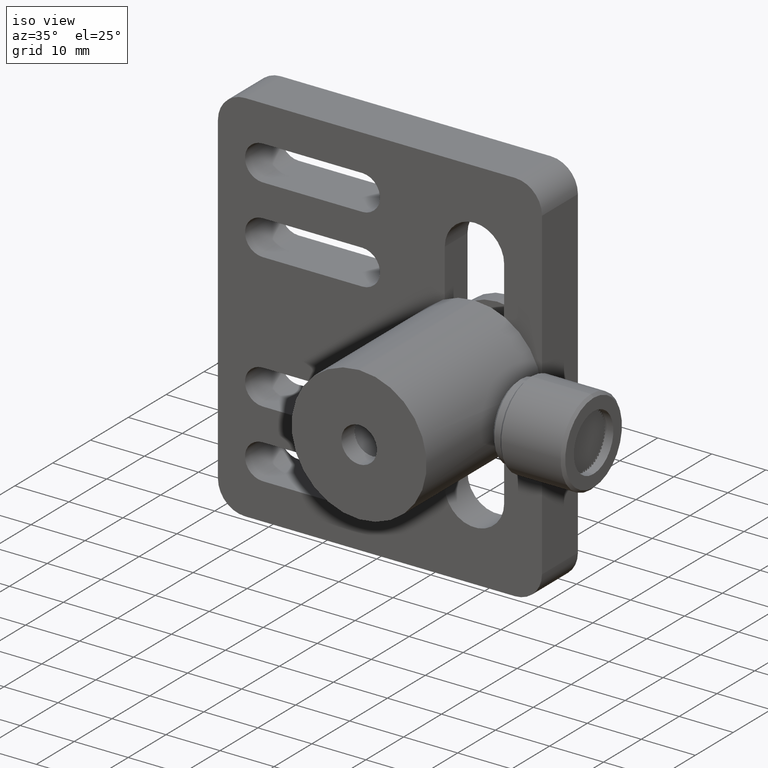
[diagram: clean part render]
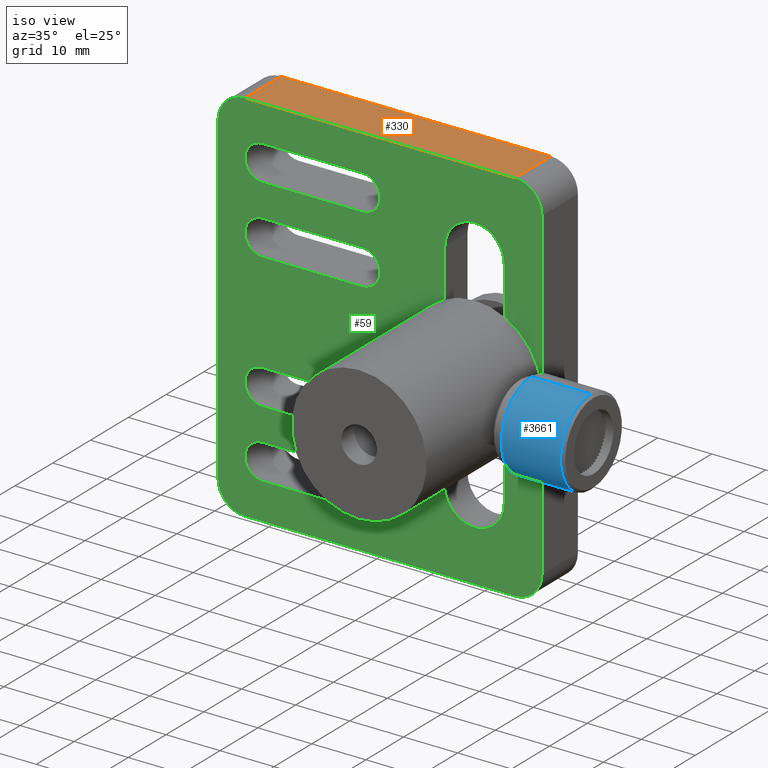
[diagram: same view with three faces highlighted in distinct colors, each labeled with its STEP entity id]
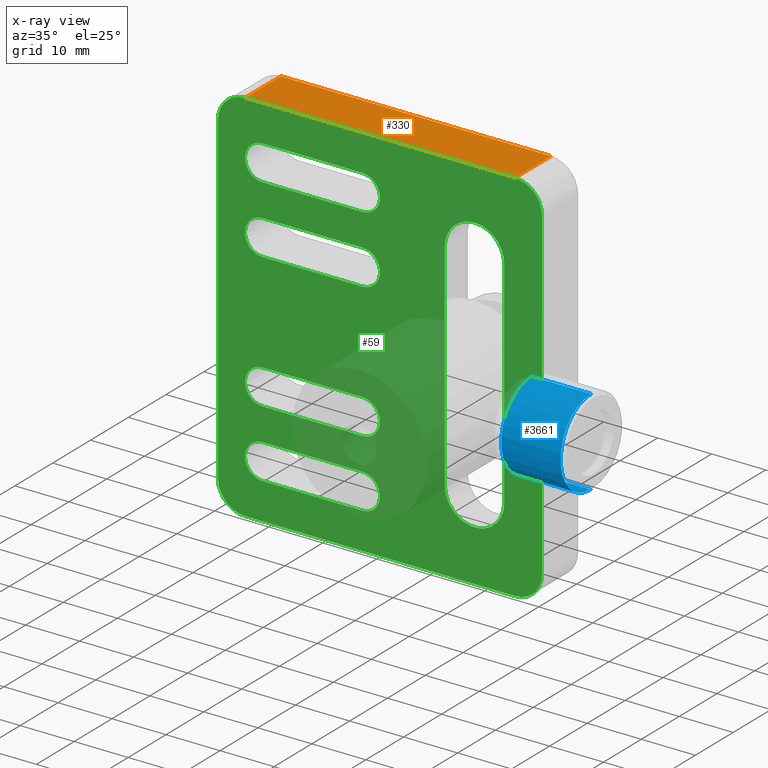
[diagram: x-ray of the same camera — body ghosted, the three highlighted faces saturated]
A machine part, iso view with three faces highlighted in distinct colors.
The next image is the same camera in x-ray (body ghosted, the three faces saturated) — at least one of them is partly hidden behind the body in this view.
Their STEP definitions:

[orange] entity #330 — the highlighted planar face has unit normal (0, -0, 1).
#65 = LINE ( 'NONE', #897, #756 ) ;
#205 = EDGE_CURVE ( 'NONE', #2771, #2123, #1930, .T. ) ;
#330 = ADVANCED_FACE ( 'NONE', ( #1451 ), #1740, .T. ) ;
#370 = VECTOR ( 'NONE', #419, 1000.000000000000000 ) ;
#386 = DIRECTION ( 'NONE',  ( 2.775557561562894300E-016, -0.0000000000000000000, 1.000000000000000000 ) ) ;
#419 = DIRECTION ( 'NONE',  ( 0.0000000000000000000, 1.000000000000000000, 0.0000000000000000000 ) ) ;
#461 = ORIENTED_EDGE ( 'NONE', *, *, #205, .T. ) ;
#577 = EDGE_CURVE ( 'NONE', #3129, #1959, #65, .T. ) ;
#618 = ORIENTED_EDGE ( 'NONE', *, *, #3703, .F. ) ;
#620 = ORIENTED_EDGE ( 'NONE', *, *, #3193, .T. ) ;
#756 = VECTOR ( 'NONE', #3875, 1000.000000000000000 ) ;
#897 = CARTESIAN_POINT ( 'NONE',  ( -69.94529086523761000, -2.361489554950050100, 35.00000000000000000 ) ) ;
#1034 = VECTOR ( 'NONE', #2993, 1000.000000000000000 ) ;
#1064 = CARTESIAN_POINT ( 'NONE',  ( -23.09264305177112000, -11.86148955495005100, 34.99999999999999300 ) ) ;
#1179 = CARTESIAN_POINT ( 'NONE',  ( 26.90735694822882400, -11.86148955495005100, 34.99999999999997900 ) ) ;
#1448 = CARTESIAN_POINT ( 'NONE',  ( -69.94529086523761000, -11.86148955495005100, 35.00000000000000000 ) ) ;
#1451 = FACE_OUTER_BOUND ( 'NONE', #3376, .T. ) ;
#1547 = LINE ( 'NONE', #1064, #370 ) ;
#1721 = CARTESIAN_POINT ( 'NONE',  ( -69.94529086523761000, -11.86148955495005100, 35.00000000000000000 ) ) ;
#1740 = PLANE ( 'NONE',  #3126 ) ;
#1808 = CARTESIAN_POINT ( 'NONE',  ( -23.09264305177112000, -2.361489554950050100, 34.99999999999999300 ) ) ;
#1930 = LINE ( 'NONE', #1721, #1034 ) ;
#1959 = VERTEX_POINT ( 'NONE', #4295 ) ;
#2067 = VECTOR ( 'NONE', #2215, 1000.000000000000000 ) ;
#2113 = DIRECTION ( 'NONE',  ( 1.000000000000000000, 0.0000000000000000000, -2.775557561562894300E-016 ) ) ;
#2123 = VERTEX_POINT ( 'NONE', #2597 ) ;
#2215 = DIRECTION ( 'NONE',  ( 0.0000000000000000000, 1.000000000000000000, 0.0000000000000000000 ) ) ;
#2597 = CARTESIAN_POINT ( 'NONE',  ( 26.90735694822882400, -11.86148955495005100, 34.99999999999997900 ) ) ;
#2771 = VERTEX_POINT ( 'NONE', #3203 ) ;
#2851 = LINE ( 'NONE', #1179, #2067 ) ;
#2993 = DIRECTION ( 'NONE',  ( 1.000000000000000000, 0.0000000000000000000, -2.775557561562894300E-016 ) ) ;
#3126 = AXIS2_PLACEMENT_3D ( 'NONE', #1448, #386, #2113 ) ;
#3128 = ORIENTED_EDGE ( 'NONE', *, *, #577, .F. ) ;
#3129 = VERTEX_POINT ( 'NONE', #1808 ) ;
#3193 = EDGE_CURVE ( 'NONE', #2123, #1959, #2851, .T. ) ;
#3203 = CARTESIAN_POINT ( 'NONE',  ( -23.09264305177112000, -11.86148955495005100, 34.99999999999999300 ) ) ;
#3376 = EDGE_LOOP ( 'NONE', ( #3128, #618, #461, #620 ) ) ;
#3703 = EDGE_CURVE ( 'NONE', #2771, #3129, #1547, .T. ) ;
#3875 = DIRECTION ( 'NONE',  ( 1.000000000000000000, 0.0000000000000000000, -2.775557561562894300E-016 ) ) ;
#4295 = CARTESIAN_POINT ( 'NONE',  ( 26.90735694822882400, -2.361489554950050100, 34.99999999999997900 ) ) ;

[blue] entity #3661 — the highlighted cylindrical surface (partial cylindrical patch) has radius 8 mm, axis along (1, 0, -0).
#220 = ORIENTED_EDGE ( 'NONE', *, *, #4328, .T. ) ;
#358 = CARTESIAN_POINT ( 'NONE',  ( 47.60735694822877700, -21.36148955495005100, 2.249594212587182400E-014 ) ) ;
#439 = VERTEX_POINT ( 'NONE', #815 ) ;
#484 = FACE_OUTER_BOUND ( 'NONE', #3989, .T. ) ;
#725 = DIRECTION ( 'NONE',  ( 0.0000000000000000000, 0.0000000000000000000, -1.000000000000000000 ) ) ;
#772 = LINE ( 'NONE', #1071, #1782 ) ;
#815 = CARTESIAN_POINT ( 'NONE',  ( 36.60735694822878400, -21.36148955495005500, -7.999999999999977800 ) ) ;
#1015 = VERTEX_POINT ( 'NONE', #1985 ) ;
#1071 = CARTESIAN_POINT ( 'NONE',  ( 34.10735694822878400, -21.36148955495003000, -7.999999999999977800 ) ) ;
#1091 = ORIENTED_EDGE ( 'NONE', *, *, #1135, .T. ) ;
#1135 = EDGE_CURVE ( 'NONE', #439, #1199, #772, .T. ) ;
#1199 = VERTEX_POINT ( 'NONE', #3082 ) ;
#1362 = DIRECTION ( 'NONE',  ( 0.0000000000000000000, 0.0000000000000000000, -1.000000000000000000 ) ) ;
#1405 = VERTEX_POINT ( 'NONE', #3898 ) ;
#1408 = CARTESIAN_POINT ( 'NONE',  ( 34.10735694822878400, -21.36148955495003000, 2.267564968752979600E-014 ) ) ;
#1443 = AXIS2_PLACEMENT_3D ( 'NONE', #358, #2723, #1362 ) ;
#1470 = EDGE_CURVE ( 'NONE', #1405, #439, #1989, .T. ) ;
#1596 = LINE ( 'NONE', #1714, #3255 ) ;
#1675 = DIRECTION ( 'NONE',  ( 1.000000000000000000, 3.382788729622947300E-016, -1.331167123392389800E-017 ) ) ;
#1714 = CARTESIAN_POINT ( 'NONE',  ( 34.10735694822878400, -21.36148955495003000, 8.000000000000023100 ) ) ;
#1782 = VECTOR ( 'NONE', #1675, 1000.000000000000000 ) ;
#1950 = DIRECTION ( 'NONE',  ( 1.000000000000000000, 3.382788729622947300E-016, -1.331167123392389800E-017 ) ) ;
#1985 = CARTESIAN_POINT ( 'NONE',  ( 47.60735694822877700, -21.36148955495002600, 8.000000000000023100 ) ) ;
#1989 = CIRCLE ( 'NONE', #2933, 8.000000000000000000 ) ;
#2723 = DIRECTION ( 'NONE',  ( -1.000000000000000000, -3.382788729622947300E-016, 1.331167123392389800E-017 ) ) ;
#2753 = DIRECTION ( 'NONE',  ( 1.000000000000000000, 3.382788729622947300E-016, -1.331167123392389800E-017 ) ) ;
#2762 = AXIS2_PLACEMENT_3D ( 'NONE', #1408, #2753, #725 ) ;
#2933 = AXIS2_PLACEMENT_3D ( 'NONE', #3606, #1950, #3224 ) ;
#3082 = CARTESIAN_POINT ( 'NONE',  ( 47.60735694822877700, -21.36148955495005100, -7.999999999999977800 ) ) ;
#3107 = CIRCLE ( 'NONE', #1443, 8.000000000000000000 ) ;
#3162 = CYLINDRICAL_SURFACE ( 'NONE', #2762, 8.000000000000000000 ) ;
#3224 = DIRECTION ( 'NONE',  ( 0.0000000000000000000, 0.0000000000000000000, 1.000000000000000000 ) ) ;
#3255 = VECTOR ( 'NONE', #4095, 1000.000000000000000 ) ;
#3425 = EDGE_CURVE ( 'NONE', #1405, #1015, #1596, .T. ) ;
#3498 = ORIENTED_EDGE ( 'NONE', *, *, #1470, .T. ) ;
#3606 = CARTESIAN_POINT ( 'NONE',  ( 36.60735694822878400, -21.36148955495005500, 2.264237050944496300E-014 ) ) ;
#3661 = ADVANCED_FACE ( 'NONE', ( #484 ), #3162, .T. ) ;
#3898 = CARTESIAN_POINT ( 'NONE',  ( 36.60735694822878400, -21.36148955495005500, 8.000000000000023100 ) ) ;
#3989 = EDGE_LOOP ( 'NONE', ( #4074, #3498, #1091, #220 ) ) ;
#4074 = ORIENTED_EDGE ( 'NONE', *, *, #3425, .F. ) ;
#4095 = DIRECTION ( 'NONE',  ( 1.000000000000000000, 3.382788729622947300E-016, -1.331167123392389800E-017 ) ) ;
#4328 = EDGE_CURVE ( 'NONE', #1199, #1015, #3107, .T. ) ;

[green] entity #59 — the highlighted planar face has unit normal (0, 1, -0).
#8 = DIRECTION ( 'NONE',  ( 9.830099697201912100E-016, 0.0000000000000000000, -1.000000000000000000 ) ) ;
#30 = CIRCLE ( 'NONE', #2638, 3.250000000000001300 ) ;
#59 = ADVANCED_FACE ( 'NONE', ( #4268, #3381, #3490, #1299, #4164, #2497 ), #1267, .F. ) ;
#67 = CARTESIAN_POINT ( 'NONE',  ( 1.907356948228889000, -11.86148955495005100, 15.74999999999999300 ) ) ;
#76 = AXIS2_PLACEMENT_3D ( 'NONE', #542, #2898, #1575 ) ;
#86 = CARTESIAN_POINT ( 'NONE',  ( 31.90735694822885500, -11.86148955495005100, 1.005224583982862600E-013 ) ) ;
#114 = ORIENTED_EDGE ( 'NONE', *, *, #4178, .F. ) ;
#116 = AXIS2_PLACEMENT_3D ( 'NONE', #2855, #849, #3183 ) ;
#118 = CIRCLE ( 'NONE', #116, 3.249999999999999600 ) ;
#128 = VECTOR ( 'NONE', #3809, 1000.000000000000000 ) ;
#130 = DIRECTION ( 'NONE',  ( 1.000000000000000000, -0.0000000000000000000, 0.0000000000000000000 ) ) ;
#135 = CIRCLE ( 'NONE', #673, 5.499999999999998200 ) ;
#156 = CARTESIAN_POINT ( 'NONE',  ( 31.90735694822882700, -11.86148955495005100, 29.99999999999998600 ) ) ;
#184 = EDGE_CURVE ( 'NONE', #4283, #2771, #229, .T. ) ;
#205 = EDGE_CURVE ( 'NONE', #2771, #2123, #1930, .T. ) ;
#214 = DIRECTION ( 'NONE',  ( 1.000000000000000000, 0.0000000000000000000, -3.750753461571475400E-016 ) ) ;
#217 = VERTEX_POINT ( 'NONE', #4353 ) ;
#229 = CIRCLE ( 'NONE', #2518, 5.000000000000039100 ) ;
#241 = DIRECTION ( 'NONE',  ( -0.0000000000000000000, -0.0000000000000000000, -1.000000000000000000 ) ) ;
#264 = AXIS2_PLACEMENT_3D ( 'NONE', #801, #4181, #469 ) ;
#277 = CARTESIAN_POINT ( 'NONE',  ( -28.09264305177111300, -11.86148955495005100, -30.00000000000000700 ) ) ;
#290 = VERTEX_POINT ( 'NONE', #767 ) ;
#305 = DIRECTION ( 'NONE',  ( 0.0000000000000000000, 0.0000000000000000000, 1.000000000000000000 ) ) ;
#309 = DIRECTION ( 'NONE',  ( 0.0000000000000000000, 1.000000000000000000, -0.0000000000000000000 ) ) ;
#332 = VECTOR ( 'NONE', #8, 1000.000000000000000 ) ;
#396 = EDGE_CURVE ( 'NONE', #1503, #3457, #2026, .T. ) ;
#410 = EDGE_CURVE ( 'NONE', #2359, #3389, #118, .T. ) ;
#423 = DIRECTION ( 'NONE',  ( 0.0000000000000000000, 1.000000000000000000, -0.0000000000000000000 ) ) ;
#445 = ORIENTED_EDGE ( 'NONE', *, *, #744, .F. ) ;
#448 = VERTEX_POINT ( 'NONE', #834 ) ;
#469 = DIRECTION ( 'NONE',  ( 0.0000000000000000000, 0.0000000000000000000, 1.000000000000000000 ) ) ;
#488 = EDGE_LOOP ( 'NONE', ( #2393, #3819, #1167, #1354 ) ) ;
#492 = ORIENTED_EDGE ( 'NONE', *, *, #396, .T. ) ;
#505 = VERTEX_POINT ( 'NONE', #1538 ) ;
#517 = VERTEX_POINT ( 'NONE', #554 ) ;
#535 = VECTOR ( 'NONE', #3063, 1000.000000000000000 ) ;
#542 = CARTESIAN_POINT ( 'NONE',  ( -19.84264305177111600, -11.86148955495005100, -25.00000000000000700 ) ) ;
#548 = ORIENTED_EDGE ( 'NONE', *, *, #1321, .F. ) ;
#554 = CARTESIAN_POINT ( 'NONE',  ( -19.84264305177111600, -11.86148955495005100, -15.75000000000000700 ) ) ;
#573 = CARTESIAN_POINT ( 'NONE',  ( -69.94529086523762400, -11.86148955495005100, 6.289829463663238100E-015 ) ) ;
#581 = ORIENTED_EDGE ( 'NONE', *, *, #1248, .T. ) ;
#599 = EDGE_CURVE ( 'NONE', #2551, #3558, #1444, .T. ) ;
#621 = DIRECTION ( 'NONE',  ( -0.0000000000000000000, 1.000000000000000000, 0.0000000000000000000 ) ) ;
#658 = DIRECTION ( 'NONE',  ( 0.0000000000000000000, 1.000000000000000000, -0.0000000000000000000 ) ) ;
#660 = CARTESIAN_POINT ( 'NONE',  ( -28.09264305177116900, -11.86148955495005100, 29.99999999999997200 ) ) ;
#667 = EDGE_LOOP ( 'NONE', ( #4346, #3523, #3742, #2107 ) ) ;
#673 = AXIS2_PLACEMENT_3D ( 'NONE', #4010, #2040, #305 ) ;
#681 = DIRECTION ( 'NONE',  ( 0.0000000000000000000, 0.0000000000000000000, 1.000000000000000000 ) ) ;
#687 = CARTESIAN_POINT ( 'NONE',  ( -23.09264305177117300, -11.86148955495005100, -35.00000000000000700 ) ) ;
#696 = CARTESIAN_POINT ( 'NONE',  ( 1.907356948228891500, -11.86148955495005100, 21.74999999999999600 ) ) ;
#702 = VERTEX_POINT ( 'NONE', #2090 ) ;
#708 = DIRECTION ( 'NONE',  ( 1.000000000000000000, -0.0000000000000000000, 0.0000000000000000000 ) ) ;
#736 = CARTESIAN_POINT ( 'NONE',  ( -1.342643051771116100, -11.86148955495005100, -15.75000000000000700 ) ) ;
#743 = VECTOR ( 'NONE', #214, 1000.000000000000000 ) ;
#744 = EDGE_CURVE ( 'NONE', #1992, #4070, #4257, .T. ) ;
#767 = CARTESIAN_POINT ( 'NONE',  ( 19.40735694822887700, -11.86148955495005100, 25.49999999999999300 ) ) ;
#776 = CARTESIAN_POINT ( 'NONE',  ( 24.90735694822887700, -11.86148955495005100, 19.99999999999999300 ) ) ;
#785 = VERTEX_POINT ( 'NONE', #3172 ) ;
#793 = LINE ( 'NONE', #696, #4244 ) ;
#801 = CARTESIAN_POINT ( 'NONE',  ( 19.40735694822887700, -11.86148955495005100, 19.99999999999999300 ) ) ;
#820 = CARTESIAN_POINT ( 'NONE',  ( 26.90735694822888400, -11.86148955495005100, -30.00000000000001400 ) ) ;
#834 = CARTESIAN_POINT ( 'NONE',  ( -1.342643051771116100, -11.86148955495005100, -9.250000000000007100 ) ) ;
#849 = DIRECTION ( 'NONE',  ( 0.0000000000000000000, 1.000000000000000000, -0.0000000000000000000 ) ) ;
#892 = VERTEX_POINT ( 'NONE', #3496 ) ;
#899 = ORIENTED_EDGE ( 'NONE', *, *, #2895, .F. ) ;
#906 = CARTESIAN_POINT ( 'NONE',  ( -1.342643051771111900, -11.86148955495005100, 21.74999999999999600 ) ) ;
#964 = LINE ( 'NONE', #4290, #3414 ) ;
#972 = CIRCLE ( 'NONE', #3115, 3.250000000000001300 ) ;
#985 = ORIENTED_EDGE ( 'NONE', *, *, #4312, .T. ) ;
#1005 = DIRECTION ( 'NONE',  ( 0.0000000000000000000, 1.000000000000000000, -0.0000000000000000000 ) ) ;
#1032 = CARTESIAN_POINT ( 'NONE',  ( -19.84264305177110900, -11.86148955495005100, 28.25000000000000000 ) ) ;
#1034 = VECTOR ( 'NONE', #2993, 1000.000000000000000 ) ;
#1047 = EDGE_CURVE ( 'NONE', #4283, #1587, #2348, .T. ) ;
#1086 = DIRECTION ( 'NONE',  ( 1.000000000000000000, 0.0000000000000000000, -3.750753461571475400E-016 ) ) ;
#1104 = EDGE_CURVE ( 'NONE', #217, #290, #135, .T. ) ;
#1115 = CARTESIAN_POINT ( 'NONE',  ( 26.90735694822882400, -11.86148955495005100, 29.99999999999998900 ) ) ;
#1156 = ORIENTED_EDGE ( 'NONE', *, *, #1220, .T. ) ;
#1167 = ORIENTED_EDGE ( 'NONE', *, *, #410, .T. ) ;
#1220 = EDGE_CURVE ( 'NONE', #702, #505, #2450, .T. ) ;
#1248 = EDGE_CURVE ( 'NONE', #3457, #3558, #4122, .T. ) ;
#1253 = AXIS2_PLACEMENT_3D ( 'NONE', #3046, #309, #3679 ) ;
#1267 = PLANE ( 'NONE',  #3573 ) ;
#1278 = DIRECTION ( 'NONE',  ( 0.0000000000000000000, 0.0000000000000000000, 1.000000000000000000 ) ) ;
#1299 = FACE_BOUND ( 'NONE', #667, .T. ) ;
#1302 = DIRECTION ( 'NONE',  ( 0.0000000000000000000, 0.0000000000000000000, -1.000000000000000000 ) ) ;
#1321 = EDGE_CURVE ( 'NONE', #2401, #1992, #3333, .T. ) ;
#1354 = ORIENTED_EDGE ( 'NONE', *, *, #3174, .F. ) ;
#1386 = CIRCLE ( 'NONE', #264, 5.499999999999998200 ) ;
#1400 = CARTESIAN_POINT ( 'NONE',  ( -19.84264305177111300, -11.86148955495005100, 9.249999999999998200 ) ) ;
#1429 = VECTOR ( 'NONE', #130, 1000.000000000000000 ) ;
#1444 = CIRCLE ( 'NONE', #2163, 3.249999999999999600 ) ;
#1446 = DIRECTION ( 'NONE',  ( 1.000000000000000000, 0.0000000000000000000, -3.750753461571475400E-016 ) ) ;
#1471 = EDGE_CURVE ( 'NONE', #4239, #785, #3696, .T. ) ;
#1476 = CARTESIAN_POINT ( 'NONE',  ( -1.342643051771110100, -11.86148955495005100, 28.24999999999999300 ) ) ;
#1488 = LINE ( 'NONE', #3904, #2637 ) ;
#1503 = VERTEX_POINT ( 'NONE', #4332 ) ;
#1518 = VECTOR ( 'NONE', #1086, 1000.000000000000000 ) ;
#1538 = CARTESIAN_POINT ( 'NONE',  ( -1.342643051771112300, -11.86148955495005100, 15.74999999999999300 ) ) ;
#1551 = DIRECTION ( 'NONE',  ( 8.673617379884036500E-016, 0.0000000000000000000, 1.000000000000000000 ) ) ;
#1567 = CARTESIAN_POINT ( 'NONE',  ( -1.342643051771113200, -11.86148955495005100, 12.49999999999999300 ) ) ;
#1569 = CARTESIAN_POINT ( 'NONE',  ( -1.342643051771110100, -11.86148955495005100, 24.99999999999999300 ) ) ;
#1574 = ORIENTED_EDGE ( 'NONE', *, *, #184, .F. ) ;
#1575 = DIRECTION ( 'NONE',  ( 0.0000000000000000000, 0.0000000000000000000, 1.000000000000000000 ) ) ;
#1587 = VERTEX_POINT ( 'NONE', #277 ) ;
#1665 = EDGE_CURVE ( 'NONE', #2807, #448, #3327, .T. ) ;
#1721 = CARTESIAN_POINT ( 'NONE',  ( -69.94529086523761000, -11.86148955495005100, 35.00000000000000000 ) ) ;
#1735 = CARTESIAN_POINT ( 'NONE',  ( -1.342643051771114100, -11.86148955495005100, 9.249999999999991100 ) ) ;
#1810 = CIRCLE ( 'NONE', #76, 3.249999999999999600 ) ;
#1868 = DIRECTION ( 'NONE',  ( 0.0000000000000000000, 0.0000000000000000000, 1.000000000000000000 ) ) ;
#1930 = LINE ( 'NONE', #1721, #1034 ) ;
#1968 = CIRCLE ( 'NONE', #1253, 4.999999999999973400 ) ;
#1988 = ORIENTED_EDGE ( 'NONE', *, *, #599, .F. ) ;
#1992 = VERTEX_POINT ( 'NONE', #3328 ) ;
#2026 = CIRCLE ( 'NONE', #3268, 3.249999999999999600 ) ;
#2037 = EDGE_LOOP ( 'NONE', ( #2920, #3976, #985, #3470, #2732 ) ) ;
#2040 = DIRECTION ( 'NONE',  ( 0.0000000000000000000, 1.000000000000000000, 0.0000000000000000000 ) ) ;
#2090 = CARTESIAN_POINT ( 'NONE',  ( -19.84264305177111300, -11.86148955495005100, 15.75000000000000000 ) ) ;
#2107 = ORIENTED_EDGE ( 'NONE', *, *, #3730, .F. ) ;
#2123 = VERTEX_POINT ( 'NONE', #2597 ) ;
#2160 = DIRECTION ( 'NONE',  ( 0.0000000000000000000, 1.000000000000000000, -0.0000000000000000000 ) ) ;
#2163 = AXIS2_PLACEMENT_3D ( 'NONE', #1569, #3562, #1551 ) ;
#2224 = DIRECTION ( 'NONE',  ( -0.0000000000000000000, -1.000000000000000000, 0.0000000000000000000 ) ) ;
#2245 = CARTESIAN_POINT ( 'NONE',  ( -19.84264305177111300, -11.86148955495005100, 12.49999999999999800 ) ) ;
#2254 = VERTEX_POINT ( 'NONE', #1400 ) ;
#2282 = VECTOR ( 'NONE', #708, 1000.000000000000000 ) ;
#2315 = CARTESIAN_POINT ( 'NONE',  ( -23.09264305177111300, -11.86148955495005100, 29.99999999999997200 ) ) ;
#2334 = CARTESIAN_POINT ( 'NONE',  ( -1.342643051771116100, -11.86148955495005100, -12.50000000000000500 ) ) ;
#2348 = LINE ( 'NONE', #3724, #332 ) ;
#2359 = VERTEX_POINT ( 'NONE', #4114 ) ;
#2393 = ORIENTED_EDGE ( 'NONE', *, *, #2839, .F. ) ;
#2401 = VERTEX_POINT ( 'NONE', #156 ) ;
#2450 = LINE ( 'NONE', #67, #4011 ) ;
#2497 = FACE_BOUND ( 'NONE', #2498, .T. ) ;
#2498 = EDGE_LOOP ( 'NONE', ( #3007, #492, #581, #1988 ) ) ;
#2518 = AXIS2_PLACEMENT_3D ( 'NONE', #2315, #658, #3004 ) ;
#2526 = EDGE_CURVE ( 'NONE', #3485, #505, #30, .T. ) ;
#2544 = DIRECTION ( 'NONE',  ( 0.0000000000000000000, 1.000000000000000000, -0.0000000000000000000 ) ) ;
#2551 = VERTEX_POINT ( 'NONE', #906 ) ;
#2558 = VECTOR ( 'NONE', #3829, 1000.000000000000000 ) ;
#2567 = DIRECTION ( 'NONE',  ( 0.0000000000000000000, 0.0000000000000000000, 1.000000000000000000 ) ) ;
#2597 = CARTESIAN_POINT ( 'NONE',  ( 26.90735694822882400, -11.86148955495005100, 34.99999999999997900 ) ) ;
#2618 = CARTESIAN_POINT ( 'NONE',  ( 1.907356948228886800, -11.86148955495005100, 9.249999999999989300 ) ) ;
#2623 = AXIS2_PLACEMENT_3D ( 'NONE', #820, #2801, #2847 ) ;
#2637 = VECTOR ( 'NONE', #3920, 1000.000000000000000 ) ;
#2638 = AXIS2_PLACEMENT_3D ( 'NONE', #1567, #2224, #2567 ) ;
#2640 = DIRECTION ( 'NONE',  ( 0.0000000000000000000, 0.0000000000000000000, 1.000000000000000000 ) ) ;
#2691 = VERTEX_POINT ( 'NONE', #736 ) ;
#2714 = CARTESIAN_POINT ( 'NONE',  ( 26.90735694822887700, -11.86148955495005100, -35.00000000000000700 ) ) ;
#2719 = DIRECTION ( 'NONE',  ( 1.000000000000000000, -0.0000000000000000000, 0.0000000000000000000 ) ) ;
#2732 = ORIENTED_EDGE ( 'NONE', *, *, #3743, .T. ) ;
#2738 = CARTESIAN_POINT ( 'NONE',  ( 24.90735694822887700, -11.86148955495005100, -20.00000000000000700 ) ) ;
#2768 = CARTESIAN_POINT ( 'NONE',  ( 1.907356948228893900, -11.86148955495005100, 28.24999999999999300 ) ) ;
#2771 = VERTEX_POINT ( 'NONE', #3203 ) ;
#2801 = DIRECTION ( 'NONE',  ( 0.0000000000000000000, 1.000000000000000000, -0.0000000000000000000 ) ) ;
#2807 = VERTEX_POINT ( 'NONE', #3521 ) ;
#2839 = EDGE_CURVE ( 'NONE', #892, #3925, #1810, .T. ) ;
#2847 = DIRECTION ( 'NONE',  ( 0.0000000000000000000, 0.0000000000000000000, 1.000000000000000000 ) ) ;
#2855 = CARTESIAN_POINT ( 'NONE',  ( -1.342643051771116100, -11.86148955495005100, -25.00000000000000700 ) ) ;
#2861 = EDGE_CURVE ( 'NONE', #4270, #4070, #1488, .T. ) ;
#2895 = EDGE_CURVE ( 'NONE', #2254, #3485, #2997, .T. ) ;
#2898 = DIRECTION ( 'NONE',  ( -0.0000000000000000000, -1.000000000000000000, 0.0000000000000000000 ) ) ;
#2899 = DIRECTION ( 'NONE',  ( 0.0000000000000000000, 0.0000000000000000000, 1.000000000000000000 ) ) ;
#2912 = DIRECTION ( 'NONE',  ( 0.0000000000000000000, 1.000000000000000000, -0.0000000000000000000 ) ) ;
#2920 = ORIENTED_EDGE ( 'NONE', *, *, #3256, .T. ) ;
#2993 = DIRECTION ( 'NONE',  ( 1.000000000000000000, 0.0000000000000000000, -2.775557561562894300E-016 ) ) ;
#2997 = LINE ( 'NONE', #2618, #743 ) ;
#3004 = DIRECTION ( 'NONE',  ( 0.0000000000000000000, 0.0000000000000000000, 1.000000000000000000 ) ) ;
#3007 = ORIENTED_EDGE ( 'NONE', *, *, #3519, .F. ) ;
#3046 = CARTESIAN_POINT ( 'NONE',  ( -23.09264305177117300, -11.86148955495005100, -30.00000000000001100 ) ) ;
#3054 = CARTESIAN_POINT ( 'NONE',  ( 1.907356948228883200, -11.86148955495005100, -9.250000000000007100 ) ) ;
#3062 = ORIENTED_EDGE ( 'NONE', *, *, #205, .F. ) ;
#3063 = DIRECTION ( 'NONE',  ( 0.0000000000000000000, 0.0000000000000000000, 1.000000000000000000 ) ) ;
#3103 = EDGE_CURVE ( 'NONE', #892, #2359, #3838, .T. ) ;
#3115 = AXIS2_PLACEMENT_3D ( 'NONE', #2245, #2544, #2899 ) ;
#3172 = CARTESIAN_POINT ( 'NONE',  ( 13.90735694822887900, -11.86148955495005100, -20.00000000000000700 ) ) ;
#3174 = EDGE_CURVE ( 'NONE', #3925, #3389, #4091, .T. ) ;
#3180 = ORIENTED_EDGE ( 'NONE', *, *, #2526, .F. ) ;
#3183 = DIRECTION ( 'NONE',  ( 0.0000000000000000000, 0.0000000000000000000, 1.000000000000000000 ) ) ;
#3203 = CARTESIAN_POINT ( 'NONE',  ( -23.09264305177112000, -11.86148955495005100, 34.99999999999999300 ) ) ;
#3208 = VECTOR ( 'NONE', #2719, 1000.000000000000000 ) ;
#3256 = EDGE_CURVE ( 'NONE', #4170, #4239, #964, .T. ) ;
#3268 = AXIS2_PLACEMENT_3D ( 'NONE', #4173, #2160, #1868 ) ;
#3295 = AXIS2_PLACEMENT_3D ( 'NONE', #4002, #621, #1302 ) ;
#3307 = CIRCLE ( 'NONE', #4236, 3.250000000000001300 ) ;
#3327 = LINE ( 'NONE', #3054, #128 ) ;
#3328 = CARTESIAN_POINT ( 'NONE',  ( 31.90735694822888000, -11.86148955495005100, -30.00000000000000700 ) ) ;
#3333 = LINE ( 'NONE', #86, #2558 ) ;
#3353 = EDGE_CURVE ( 'NONE', #448, #2691, #3307, .T. ) ;
#3381 = FACE_BOUND ( 'NONE', #2037, .T. ) ;
#3389 = VERTEX_POINT ( 'NONE', #4020 ) ;
#3414 = VECTOR ( 'NONE', #241, 1000.000000000000000 ) ;
#3429 = CARTESIAN_POINT ( 'NONE',  ( -19.84264305177111600, -11.86148955495005100, -12.50000000000000500 ) ) ;
#3446 = DIRECTION ( 'NONE',  ( 1.000000000000000000, 0.0000000000000000000, -3.750753461571475900E-016 ) ) ;
#3447 = EDGE_CURVE ( 'NONE', #2807, #517, #3726, .T. ) ;
#3457 = VERTEX_POINT ( 'NONE', #1032 ) ;
#3470 = ORIENTED_EDGE ( 'NONE', *, *, #1104, .T. ) ;
#3485 = VERTEX_POINT ( 'NONE', #1735 ) ;
#3490 = FACE_OUTER_BOUND ( 'NONE', #3866, .T. ) ;
#3496 = CARTESIAN_POINT ( 'NONE',  ( -19.84264305177111600, -11.86148955495005100, -21.75000000000001100 ) ) ;
#3519 = EDGE_CURVE ( 'NONE', #1503, #2551, #793, .T. ) ;
#3521 = CARTESIAN_POINT ( 'NONE',  ( -19.84264305177111600, -11.86148955495005100, -9.250000000000007100 ) ) ;
#3523 = ORIENTED_EDGE ( 'NONE', *, *, #1665, .T. ) ;
#3542 = AXIS2_PLACEMENT_3D ( 'NONE', #1115, #423, #4137 ) ;
#3558 = VERTEX_POINT ( 'NONE', #1476 ) ;
#3562 = DIRECTION ( 'NONE',  ( -0.0000000000000000000, -1.000000000000000000, 0.0000000000000000000 ) ) ;
#3567 = AXIS2_PLACEMENT_3D ( 'NONE', #3429, #4034, #681 ) ;
#3573 = AXIS2_PLACEMENT_3D ( 'NONE', #573, #2912, #1278 ) ;
#3575 = CIRCLE ( 'NONE', #3542, 4.999999999999993800 ) ;
#3679 = DIRECTION ( 'NONE',  ( 0.0000000000000000000, 0.0000000000000000000, 1.000000000000000000 ) ) ;
#3689 = CARTESIAN_POINT ( 'NONE',  ( 1.907356948228883200, -11.86148955495005100, -28.25000000000000700 ) ) ;
#3696 = CIRCLE ( 'NONE', #3295, 5.499999999999998200 ) ;
#3724 = CARTESIAN_POINT ( 'NONE',  ( -28.09264305177114500, -11.86148955495005100, 4.743139952348875300E-014 ) ) ;
#3726 = CIRCLE ( 'NONE', #3567, 3.250000000000001300 ) ;
#3730 = EDGE_CURVE ( 'NONE', #517, #2691, #3948, .T. ) ;
#3742 = ORIENTED_EDGE ( 'NONE', *, *, #3353, .T. ) ;
#3743 = EDGE_CURVE ( 'NONE', #290, #4170, #1386, .T. ) ;
#3784 = CARTESIAN_POINT ( 'NONE',  ( 1.907356948228883200, -11.86148955495005100, -21.75000000000001100 ) ) ;
#3787 = CARTESIAN_POINT ( 'NONE',  ( 1.907356948228883200, -11.86148955495005100, -15.75000000000000700 ) ) ;
#3809 = DIRECTION ( 'NONE',  ( 1.000000000000000000, -0.0000000000000000000, 0.0000000000000000000 ) ) ;
#3819 = ORIENTED_EDGE ( 'NONE', *, *, #3103, .T. ) ;
#3821 = ORIENTED_EDGE ( 'NONE', *, *, #4247, .F. ) ;
#3829 = DIRECTION ( 'NONE',  ( 9.251858538542973800E-016, 0.0000000000000000000, -1.000000000000000000 ) ) ;
#3838 = LINE ( 'NONE', #3784, #1429 ) ;
#3850 = EDGE_CURVE ( 'NONE', #2254, #702, #972, .T. ) ;
#3866 = EDGE_LOOP ( 'NONE', ( #3895, #3821, #4017, #445, #548, #114, #3062, #1574 ) ) ;
#3890 = CARTESIAN_POINT ( 'NONE',  ( -19.84264305177111600, -11.86148955495005100, -28.25000000000000700 ) ) ;
#3895 = ORIENTED_EDGE ( 'NONE', *, *, #1047, .T. ) ;
#3904 = CARTESIAN_POINT ( 'NONE',  ( -69.94529086523762400, -11.86148955495005100, -35.00000000000000700 ) ) ;
#3920 = DIRECTION ( 'NONE',  ( 1.000000000000000000, -0.0000000000000000000, 0.0000000000000000000 ) ) ;
#3925 = VERTEX_POINT ( 'NONE', #3890 ) ;
#3948 = LINE ( 'NONE', #3787, #2282 ) ;
#3976 = ORIENTED_EDGE ( 'NONE', *, *, #1471, .T. ) ;
#4002 = CARTESIAN_POINT ( 'NONE',  ( 19.40735694822887700, -11.86148955495005100, -20.00000000000000700 ) ) ;
#4010 = CARTESIAN_POINT ( 'NONE',  ( 19.40735694822887700, -11.86148955495005100, 19.99999999999999300 ) ) ;
#4011 = VECTOR ( 'NONE', #1446, 1000.000000000000000 ) ;
#4017 = ORIENTED_EDGE ( 'NONE', *, *, #2861, .T. ) ;
#4020 = CARTESIAN_POINT ( 'NONE',  ( -1.342643051771116100, -11.86148955495005100, -28.25000000000000700 ) ) ;
#4034 = DIRECTION ( 'NONE',  ( -0.0000000000000000000, -1.000000000000000000, 0.0000000000000000000 ) ) ;
#4070 = VERTEX_POINT ( 'NONE', #2714 ) ;
#4091 = LINE ( 'NONE', #3689, #3208 ) ;
#4114 = CARTESIAN_POINT ( 'NONE',  ( -1.342643051771116100, -11.86148955495005100, -21.75000000000001100 ) ) ;
#4122 = LINE ( 'NONE', #2768, #1518 ) ;
#4137 = DIRECTION ( 'NONE',  ( 0.0000000000000000000, 0.0000000000000000000, 1.000000000000000000 ) ) ;
#4164 = FACE_BOUND ( 'NONE', #488, .T. ) ;
#4170 = VERTEX_POINT ( 'NONE', #776 ) ;
#4173 = CARTESIAN_POINT ( 'NONE',  ( -19.84264305177110900, -11.86148955495005100, 25.00000000000000000 ) ) ;
#4178 = EDGE_CURVE ( 'NONE', #2123, #2401, #3575, .T. ) ;
#4181 = DIRECTION ( 'NONE',  ( 0.0000000000000000000, 1.000000000000000000, 0.0000000000000000000 ) ) ;
#4236 = AXIS2_PLACEMENT_3D ( 'NONE', #2334, #1005, #2640 ) ;
#4239 = VERTEX_POINT ( 'NONE', #2738 ) ;
#4244 = VECTOR ( 'NONE', #3446, 1000.000000000000000 ) ;
#4247 = EDGE_CURVE ( 'NONE', #4270, #1587, #1968, .T. ) ;
#4249 = LINE ( 'NONE', #4341, #535 ) ;
#4257 = CIRCLE ( 'NONE', #2623, 4.999999999999997300 ) ;
#4266 = EDGE_LOOP ( 'NONE', ( #899, #4349, #1156, #3180 ) ) ;
#4268 = FACE_BOUND ( 'NONE', #4266, .T. ) ;
#4270 = VERTEX_POINT ( 'NONE', #687 ) ;
#4283 = VERTEX_POINT ( 'NONE', #660 ) ;
#4290 = CARTESIAN_POINT ( 'NONE',  ( 24.90735694822887700, -11.86148955495005100, -20.00000000000000700 ) ) ;
#4312 = EDGE_CURVE ( 'NONE', #785, #217, #4249, .T. ) ;
#4332 = CARTESIAN_POINT ( 'NONE',  ( -19.84264305177110900, -11.86148955495005100, 21.75000000000000400 ) ) ;
#4341 = CARTESIAN_POINT ( 'NONE',  ( 13.90735694822887900, -11.86148955495005100, -20.00000000000000700 ) ) ;
#4346 = ORIENTED_EDGE ( 'NONE', *, *, #3447, .F. ) ;
#4349 = ORIENTED_EDGE ( 'NONE', *, *, #3850, .T. ) ;
#4353 = CARTESIAN_POINT ( 'NONE',  ( 13.90735694822888000, -11.86148955495005100, 19.99999999999999300 ) ) ;